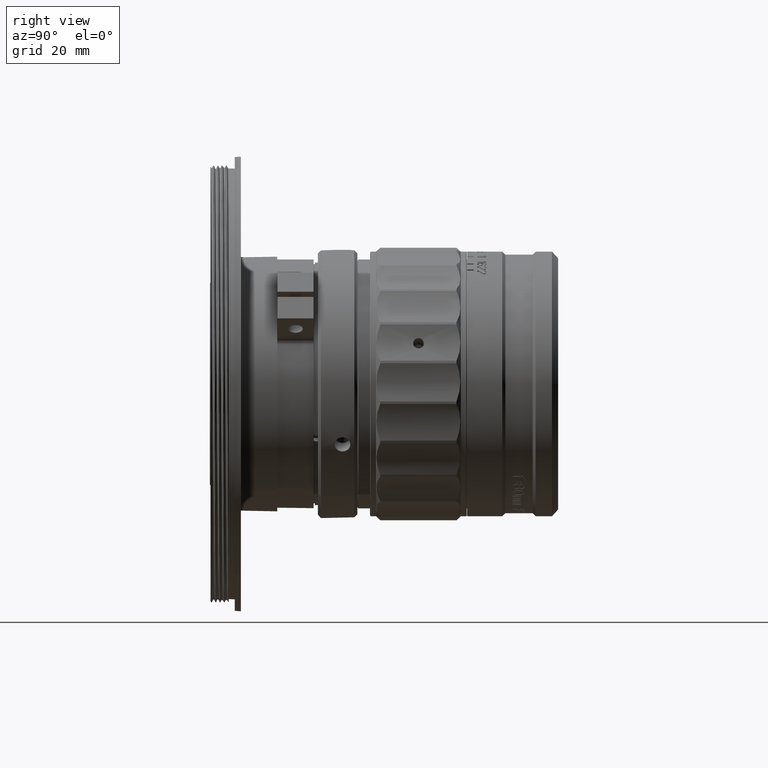
[diagram: clean part render]
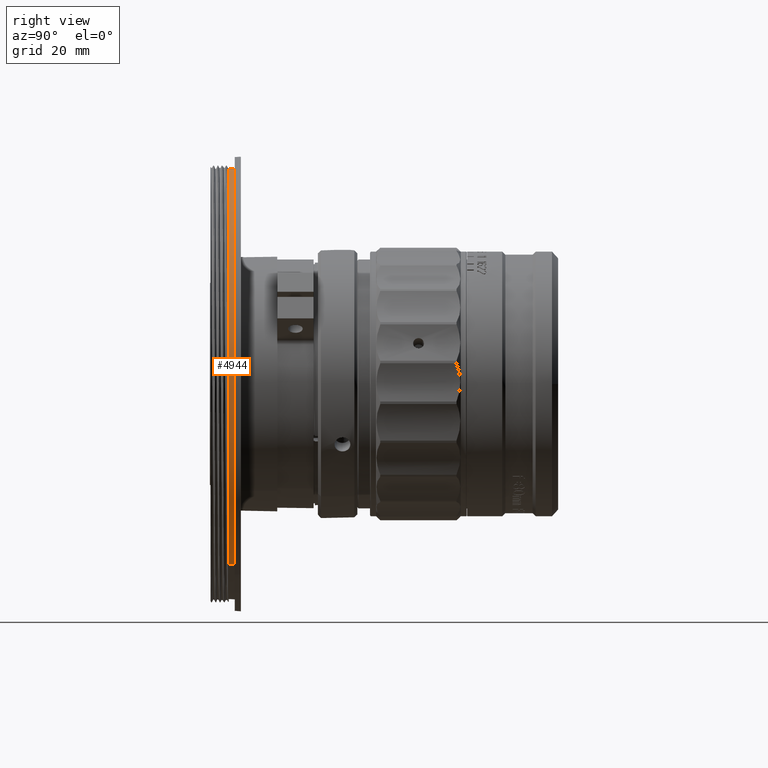
[diagram: same view with one face highlighted and labeled with its STEP entity id]
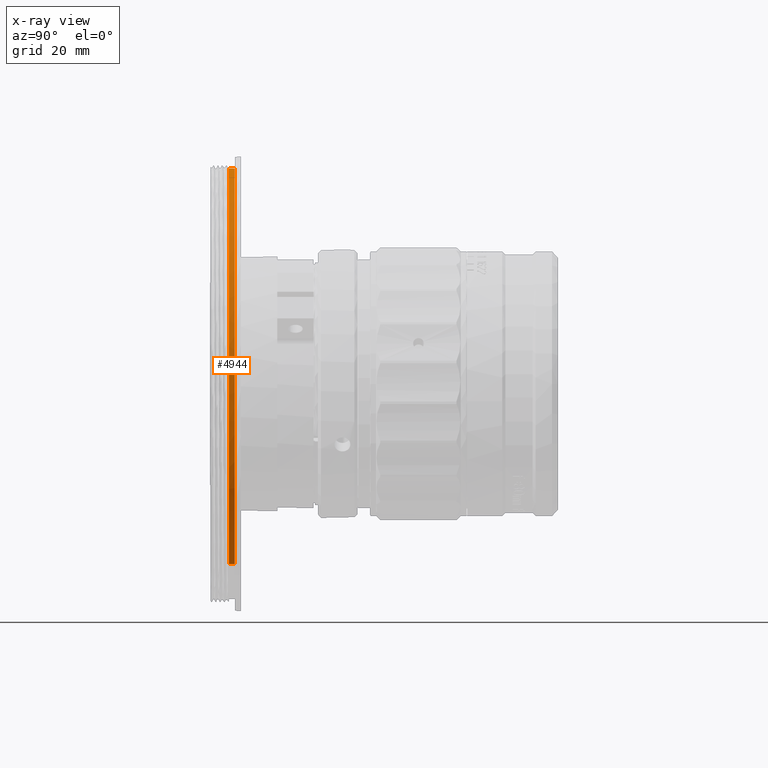
[diagram: x-ray of the same camera — body ghosted, the highlighted face saturated]
A machine part, right view. The second image highlights one B-rep face of the part: STEP entity #4944.
The next image is the same camera in x-ray: the body ghosted, the highlighted face saturated — about 0% of this face is hidden behind the body in this view.
In plain terms, the highlighted face is a freeform B-spline surface patch.
Its self-contained STEP definition (entity closure, byte-faithful):
#1179 = CARTESIAN_POINT ( 'NONE',  ( 34.40226036517892538, 3.873262399999999772, 20.41068531307086786 ) ) ;
#1908 = CARTESIAN_POINT ( 'NONE',  ( 11.08085686732539621, 3.873262399999999772, 84.38050260538747693 ) ) ;
#2265 = CARTESIAN_POINT ( 'NONE',  ( 41.48671611254084723, 3.873262399999999328, 70.22157646026370514 ) ) ;
#3056 = CARTESIAN_POINT ( 'NONE',  ( 54.13247811571311985, 4.873262400000001549, 50.86559376827046464 ) ) ;
#3835 = CARTESIAN_POINT ( 'NONE',  ( 48.35671001765199861, 4.873262399999998884, 53.13849465232782165 ) ) ;
#4940 = CARTESIAN_POINT ( 'NONE',  ( 46.84307785263290924, 4.873262399999998884, 59.94638814489083956 ) ) ;
#4944 = ADVANCED_FACE ( 'NONE', ( #42577 ), #72720, .F. ) ;
#6330 = CARTESIAN_POINT ( 'NONE',  ( 32.45555955064509845, 4.873262399999999772, 19.13885554908294750 ) ) ;
#7069 = CARTESIAN_POINT ( 'NONE',  ( 18.04850935914012311, 3.873262400000000660, 84.07997764272077745 ) ) ;
#7703 = B_SPLINE_CURVE_WITH_KNOTS ( 'NONE', 3,
 ( #49608, #54417, #20816, #15270, #37810, #55507, #48522, #38537, #66583, #37447, #49972, #66215, #26707, #60673, #38896, #61044, #71043, #33343, #15627, #4940, #27434, #3835, #32622, #9368, #48883, #10093, #20461, #16008, #10450, #32988, #71407, #21896, #32248, #66940 ),
 .UNSPECIFIED., .F., .F.,
 ( 4, 2, 2, 2, 2, 2, 2, 2, 2, 2, 2, 2, 2, 2, 2, 2, 4 ),
 ( 0.0000000000000000000, 0.1963495408493622085, 0.3926990816987244171, 0.5890486225480866533, 0.7853981633974488341, 0.9817477042468110149, 1.178097245096173307, 1.374446785945535376, 1.570796326794897668, 1.767145867644259960, 1.963495408493622030, 2.159844949342984322, 2.356194490192346613, 2.552544031041708905, 2.748893571891070753, 2.945243112740433045, 3.141592653589795336 ),
 .UNSPECIFIED. ) ;
#7804 = CARTESIAN_POINT ( 'NONE',  ( 40.02669376626934650, 3.873262399999999772, 72.03860647205496548 ) ) ;
#8069 = B_SPLINE_CURVE_WITH_KNOTS ( 'NONE', 1,
 ( #6330, #50662 ),
 .UNSPECIFIED., .F., .F.,
 ( 2, 2 ),
 ( -1.000000000000000000, 0.0000000000000000000 ),
 .UNSPECIFIED. ) ;
#8231 = CARTESIAN_POINT ( 'NONE',  ( 31.38461354832210048, 4.873262400000001549, 85.68415758792070847 ) ) ;
#9325 = CARTESIAN_POINT ( 'NONE',  ( -6.377474300191150469, 3.873262399999999772, 78.57786194603522745 ) ) ;
#9368 = CARTESIAN_POINT ( 'NONE',  ( 48.51310409591449258, 4.873262399999998884, 46.16611792976421924 ) ) ;
#9973 = CARTESIAN_POINT ( 'NONE',  ( -6.377474302732140110, 3.873262399999999772, 78.57786194267140445 ) ) ;
#10093 = CARTESIAN_POINT ( 'NONE',  ( 47.30624977269238229, 4.873262399999998884, 39.29720250910869339 ) ) ;
#10450 = CARTESIAN_POINT ( 'NONE',  ( 43.66253550251779103, 4.873262399999999772, 30.75148499349407771 ) ) ;
#12240 = CARTESIAN_POINT ( 'NONE',  ( 44.78252594469205405, 3.873262400000000216, 32.79571702146179035 ) ) ;
#12613 = CARTESIAN_POINT ( 'NONE',  ( 31.14591641853774462, 3.873262400000000660, 79.48185159097906194 ) ) ;
#12977 = CARTESIAN_POINT ( 'NONE',  ( 47.49661534521682427, 3.873262399999999772, 57.70894495955270287 ) ) ;
#13699 = CARTESIAN_POINT ( 'NONE',  ( 34.98589167609802786, 3.873262399999999772, 76.85823404835333861 ) ) ;
#14368 = B_SPLINE_CURVE_WITH_KNOTS ( 'NONE', 1,
 ( #50545, #39103 ),
 .UNSPECIFIED., .F., .F.,
 ( 2, 2 ),
 ( -1.000000000000000000, 0.0000000000000000000 ),
 .UNSPECIFIED. ) ;
#14969 = EDGE_CURVE ( 'NONE', #39893, #19826, #7703, .T. ) ;
#15270 = CARTESIAN_POINT ( 'NONE',  ( 1.951013240109133351, 4.873262399999998884, 82.66239397063286276 ) ) ;
#15627 = CARTESIAN_POINT ( 'NONE',  ( 45.10785901391394503, 4.873262399999999772, 64.26122242662501094 ) ) ;
#16008 = CARTESIAN_POINT ( 'NONE',  ( 44.78252595419778714, 4.873262399999998884, 32.79571694864238651 ) ) ;
#18152 = CARTESIAN_POINT ( 'NONE',  ( 43.66253552358034540, 3.873262400000001549, 30.75148493902420554 ) ) ;
#19618 = CARTESIAN_POINT ( 'NONE',  ( 41.03891788660129691, 3.873262399999999772, 26.91150975820800895 ) ) ;
#19679 = CARTESIAN_POINT ( 'NONE',  ( 32.45555955399999704, 4.873262399999999772, 19.13885554799999866 ) ) ;
#19826 = VERTEX_POINT ( 'NONE', #35048 ) ;
#20461 = CARTESIAN_POINT ( 'NONE',  ( 46.60658956697425026, 4.873262399999999772, 37.07375056325778928 ) ) ;
#20816 = CARTESIAN_POINT ( 'NONE',  ( -2.363821041624998731, 4.873262399999999772, 80.92717513191395540 ) ) ;
#21059 = CARTESIAN_POINT ( 'NONE',  ( -4.430773479820325100, 3.873262400000000660, 79.84969172753152122 ) ) ;
#21520 = VERTEX_POINT ( 'NONE', #67300 ) ;
#21896 = CARTESIAN_POINT ( 'NONE',  ( 36.21929027496023679, 4.873262400000000660, 21.87070763629976611 ) ) ;
#24402 = CARTESIAN_POINT ( 'NONE',  ( 4.188456395154671164, 3.873262399999999772, 83.31593146032503228 ) ) ;
#24768 = CARTESIAN_POINT ( 'NONE',  ( 29.10168443476688083, 3.873262399999999772, 80.60184208295486030 ) ) ;
#24831 = CARTESIAN_POINT ( 'NONE',  ( 49.86484146615796220, 4.873262400000001549, 30.51278782812480372 ) ) ;
#25936 = CARTESIAN_POINT ( 'NONE',  ( 32.45555955399999704, 3.873262399999999772, 19.13885554799999866 ) ) ;
#26707 = CARTESIAN_POINT ( 'NONE',  ( 31.14591639150596336, 4.873262399999999772, 79.48185162051778718 ) ) ;
#27434 = CARTESIAN_POINT ( 'NONE',  ( 47.49661537960203361, 4.873262399999999772, 57.70894504196260044 ) ) ;
#27894 = ORIENTED_EDGE ( 'NONE', *, *, #41252, .F. ) ;
#30737 = CARTESIAN_POINT ( 'NONE',  ( 11.03180760730113619, 4.873262400000001549, 89.95179423330144175 ) ) ;
#32248 = CARTESIAN_POINT ( 'NONE',  ( 34.40226032236918741, 4.873262399999999772, 20.41068531045304724 ) ) ;
#32622 = CARTESIAN_POINT ( 'NONE',  ( 48.56118647919974052, 4.873262399999999772, 50.81654455058647812 ) ) ;
#32988 = CARTESIAN_POINT ( 'NONE',  ( 41.03891789036053694, 4.873262399999998884, 26.91150971028027783 ) ) ;
#33268 = EDGE_LOOP ( 'NONE', ( #27894, #69835, #45330, #71588 ) ) ;
#33343 = CARTESIAN_POINT ( 'NONE',  ( 44.03037558598141743, 4.873262399999998884, 66.32817489417590195 ) ) ;
#33720 = CARTESIAN_POINT ( 'NONE',  ( -6.377474302732140110, 3.873262399999999772, 78.57786194267140445 ) ) ;
#34775 = CARTESIAN_POINT ( 'NONE',  ( 48.26066149025605512, 3.873262399999999772, 43.84889206557158303 ) ) ;
#35048 = CARTESIAN_POINT ( 'NONE',  ( 32.45555955064509845, 4.873262399999999772, 19.13885554908294750 ) ) ;
#35143 = CARTESIAN_POINT ( 'NONE',  ( 24.82365080292381165, 3.873262399999998884, 82.42590566922713435 ) ) ;
#35514 = CARTESIAN_POINT ( 'NONE',  ( 15.73128341917350781, 3.873262400000000660, 84.33242022723948139 ) ) ;
#35882 = CARTESIAN_POINT ( 'NONE',  ( 44.03037562899717017, 3.873262400000000216, 66.32817490636165303 ) ) ;
#36244 = CARTESIAN_POINT ( 'NONE',  ( 48.56118649788751895, 3.873262399999999772, 50.81654453013481287 ) ) ;
#36677 = CARTESIAN_POINT ( 'NONE',  ( 31.38461354832210048, 3.873262399999999772, 85.68415758792070847 ) ) ;
#37033 = CARTESIAN_POINT ( 'NONE',  ( 42.75854583201761017, 3.873262399999999772, 68.27487567809558300 ) ) ;
#37447 = CARTESIAN_POINT ( 'NONE',  ( 22.60019887589126242, 4.873262399999998884, 83.12556589069238555 ) ) ;
#37810 = CARTESIAN_POINT ( 'NONE',  ( 4.188456343037459284, 4.873262399999999772, 83.31593149760205108 ) ) ;
#38537 = CARTESIAN_POINT ( 'NONE',  ( 15.73128345523577920, 4.873262399999998884, 84.33242021391451715 ) ) ;
#38896 = CARTESIAN_POINT ( 'NONE',  ( 36.77234497607277319, 4.873262399999999772, 75.36095396104705912 ) ) ;
#39103 = CARTESIAN_POINT ( 'NONE',  ( -6.377474294218290041, 4.873262399999999772, 78.57786194677821356 ) ) ;
#39893 = VERTEX_POINT ( 'NONE', #60614 ) ;
#40682 = CARTESIAN_POINT ( 'NONE',  ( 45.10785906326135120, 3.873262399999999772, 64.26122245703466263 ) ) ;
#41056 = CARTESIAN_POINT ( 'NONE',  ( 46.60658953446991148, 3.873262399999998884, 37.07375057086739645 ) ) ;
#41252 = EDGE_CURVE ( 'NONE', #69429, #39893, #14368, .T. ) ;
#41844 = CARTESIAN_POINT ( 'NONE',  ( -6.377474300191150469, 4.873262399999999772, 78.57786194603522745 ) ) ;
#42577 = FACE_OUTER_BOUND ( 'NONE', #33268, .T. ) ;
#43123 = EDGE_CURVE ( 'NONE', #21520, #69429, #44052, .T. ) ;
#44052 = B_SPLINE_CURVE_WITH_KNOTS ( 'NONE', 3,
 ( #70190, #1179, #57652, #68736, #19618, #18152, #12240, #41056, #63549, #34775, #58020, #36244, #52483, #12977, #64277, #40682, #35882, #2265, #7804, #63187, #13699, #12613, #24768, #35143, #47313, #7069, #35514, #1908, #69826, #24402, #46959, #69455, #21059, #9973 ),
 .UNSPECIFIED., .F., .F.,
 ( 4, 2, 2, 2, 2, 2, 2, 2, 2, 2, 2, 2, 2, 2, 2, 2, 4 ),
 ( 0.0000000000000000000, 0.1963495408493618199, 0.3926990816987236399, 0.5890486225480854321, 0.7853981633974472798, 0.9817477042468091275, 1.178097245096170864, 1.374446785945532712, 1.570796326794895226, 1.767145867644257740, 1.963495408493620253, 2.159844949342982989, 2.356194490192345281, 2.552544031041707573, 2.748893571891070309, 2.945243112740432601, 3.141592653589795336 ),
 .UNSPECIFIED. ) ;
#45330 = ORIENTED_EDGE ( 'NONE', *, *, #73004, .F. ) ;
#46959 = CARTESIAN_POINT ( 'NONE',  ( 1.951013156518960567, 3.873262400000000660, 82.66239402698698768 ) ) ;
#47313 = CARTESIAN_POINT ( 'NONE',  ( 22.60019881907113160, 3.873262400000000216, 83.12556592521636389 ) ) ;
#47379 = CARTESIAN_POINT ( 'NONE',  ( 11.03180760730113619, 3.873262399999999772, 89.95179423330144175 ) ) ;
#48522 = CARTESIAN_POINT ( 'NONE',  ( 11.08085683441351321, 4.873262399999999772, 84.38050259719973667 ) ) ;
#48883 = CARTESIAN_POINT ( 'NONE',  ( 48.26066152489664773, 4.873262399999999772, 43.84889206522024097 ) ) ;
#49608 = CARTESIAN_POINT ( 'NONE',  ( -6.377474294218290041, 4.873262399999999772, 78.57786194677821356 ) ) ;
#49972 = CARTESIAN_POINT ( 'NONE',  ( 24.82365082174215942, 4.873262399999999772, 82.42590568497422510 ) ) ;
#50545 = CARTESIAN_POINT ( 'NONE',  ( -6.377474302732140110, 3.873262399999999772, 78.57786194267140445 ) ) ;
#50662 = CARTESIAN_POINT ( 'NONE',  ( 32.45555954661600140, 3.873262399999999772, 19.13885553799875083 ) ) ;
#52483 = CARTESIAN_POINT ( 'NONE',  ( 48.35671009200413550, 3.873262399999999772, 53.13849472724326972 ) ) ;
#53264 = CARTESIAN_POINT ( 'NONE',  ( 54.13247811571311985, 3.873262399999999772, 50.86559376827046464 ) ) ;
#53998 = CARTESIAN_POINT ( 'NONE',  ( 42.75854583201761017, 4.873262399999999772, 68.27487567809558300 ) ) ;
#54417 = CARTESIAN_POINT ( 'NONE',  ( -4.430773509175887526, 4.873262399999999772, 79.84969170398144911 ) ) ;
#55507 = CARTESIAN_POINT ( 'NONE',  ( 8.758906732672128825, 4.873262399999998884, 84.17602613565199476 ) ) ;
#57652 = CARTESIAN_POINT ( 'NONE',  ( 36.21929030754795065, 3.873262399999999328, 21.87070769377435298 ) ) ;
#58020 = CARTESIAN_POINT ( 'NONE',  ( 48.51310408339800517, 3.873262399999999772, 46.16611790416458661 ) ) ;
#58448 = CARTESIAN_POINT ( 'NONE',  ( 49.86484146615796220, 3.873262399999999772, 30.51278782812480372 ) ) ;
#60614 = CARTESIAN_POINT ( 'NONE',  ( -6.377474294218290041, 4.873262399999999772, 78.57786194677821356 ) ) ;
#60673 = CARTESIAN_POINT ( 'NONE',  ( 34.98589167471968153, 4.873262399999998884, 76.85823400836058283 ) ) ;
#61044 = CARTESIAN_POINT ( 'NONE',  ( 40.02669374870016128, 4.873262399999998884, 72.03860639296026136 ) ) ;
#63187 = CARTESIAN_POINT ( 'NONE',  ( 36.77234497460956675, 3.873262399999999772, 75.36095397584543321 ) ) ;
#63549 = CARTESIAN_POINT ( 'NONE',  ( 47.30624985068300248, 3.873262399999998884, 39.29720244954891228 ) ) ;
#64277 = CARTESIAN_POINT ( 'NONE',  ( 46.84307783543606263, 3.873262399999998884, 59.94638818368367339 ) ) ;
#66215 = CARTESIAN_POINT ( 'NONE',  ( 29.10168443635765811, 4.873262399999998884, 80.60184207219774066 ) ) ;
#66583 = CARTESIAN_POINT ( 'NONE',  ( 18.04850931977979300, 4.873262399999999772, 84.07997764289660836 ) ) ;
#66940 = CARTESIAN_POINT ( 'NONE',  ( 32.45555955064509845, 4.873262399999999772, 19.13885554908294750 ) ) ;
#67300 = CARTESIAN_POINT ( 'NONE',  ( 32.45555954661600140, 3.873262399999999772, 19.13885553799875083 ) ) ;
#68736 = CARTESIAN_POINT ( 'NONE',  ( 39.54163783085147799, 3.873262399999999772, 25.12505635567444884 ) ) ;
#69429 = VERTEX_POINT ( 'NONE', #33720 ) ;
#69455 = CARTESIAN_POINT ( 'NONE',  ( -2.363821005812620335, 3.873262400000000660, 80.92717518478910677 ) ) ;
#69826 = CARTESIAN_POINT ( 'NONE',  ( 8.758906700972122650, 3.873262400000000660, 84.17602616224669987 ) ) ;
#69835 = ORIENTED_EDGE ( 'NONE', *, *, #43123, .F. ) ;
#70190 = CARTESIAN_POINT ( 'NONE',  ( 32.45555954661600140, 3.873262399999999772, 19.13885553799875083 ) ) ;
#71043 = CARTESIAN_POINT ( 'NONE',  ( 41.48671607454691213, 4.873262399999999772, 70.22157644036924751 ) ) ;
#71407 = CARTESIAN_POINT ( 'NONE',  ( 39.54163784304713403, 4.873262399999999772, 25.12505640892729275 ) ) ;
#71588 = ORIENTED_EDGE ( 'NONE', *, *, #14969, .F. ) ;
#72720 =( BOUNDED_SURFACE ( )  B_SPLINE_SURFACE ( 1, 3, ( 
 ( #19679, #24831, #3056, #53998, #8231, #30737, #41844 ),
 ( #25936, #58448, #53264, #37033, #36677, #47379, #9325 ) ),
 .UNSPECIFIED., .F., .F., .F. ) 
 B_SPLINE_SURFACE_WITH_KNOTS ( ( 2, 2 ),
 ( 4, 3, 4 ),
 ( 0.0000000000000000000, 1.000000000000000000 ),
 ( 0.0000000000000000000, 0.5000000000000000000, 1.000000000000000000 ),
 .UNSPECIFIED. ) 
 GEOMETRIC_REPRESENTATION_ITEM ( )  RATIONAL_B_SPLINE_SURFACE ( (
 ( 1.000000000000000000, 0.8047378540760217192, 0.8047378540760217192, 1.000000000000000000, 0.8047378540760217192, 0.8047378540760217192, 1.000000000000000000),
 ( 1.000000000000000000, 0.8047378540760217192, 0.8047378540760217192, 1.000000000000000000, 0.8047378540760217192, 0.8047378540760217192, 1.000000000000000000) ) ) 
 REPRESENTATION_ITEM ( '' )  SURFACE ( )  );
#73004 = EDGE_CURVE ( 'NONE', #19826, #21520, #8069, .T. ) ;